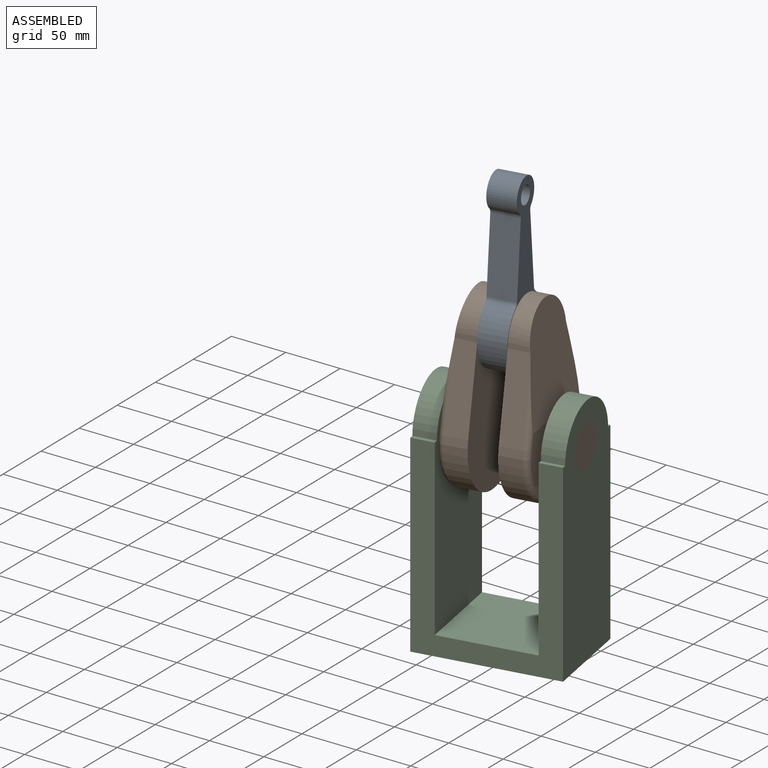
[diagram: assembled view]
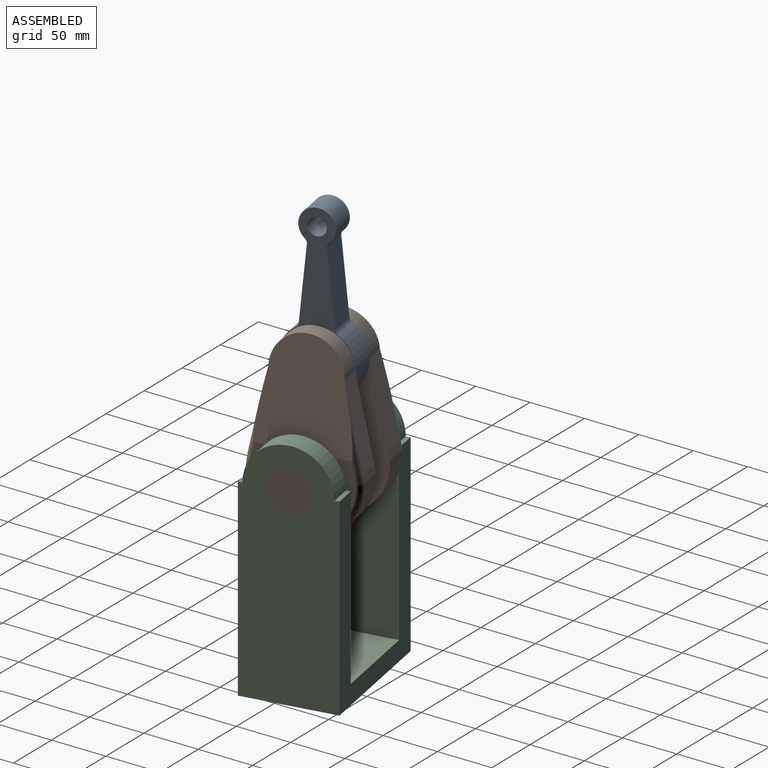
[diagram: assembled view, second angle]
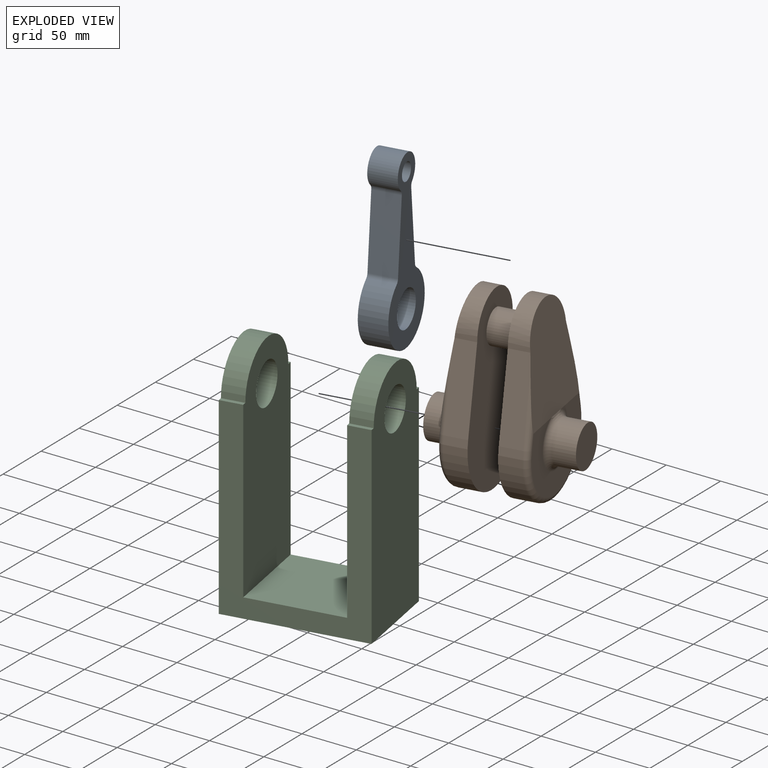
[diagram: exploded view]
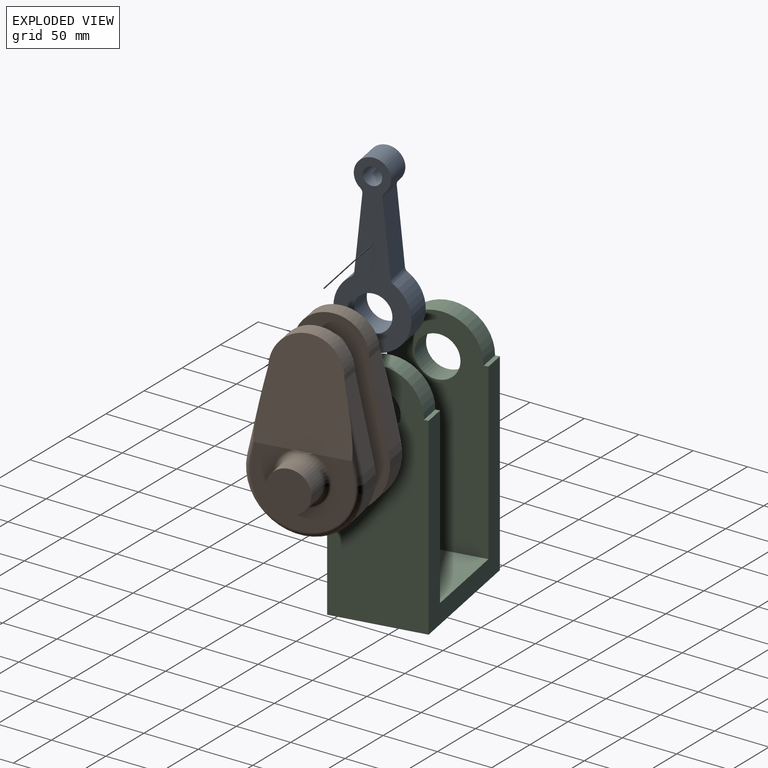
[diagram: exploded view, second angle]
ASSEMBLY  parts=3 mates=2
PART A: 12 faces, bbox 64.9x25.4x162 mm
  f0: cylinder r=32.45mm len=64.9mm, axis (0,1,0), area 4241.7mm2, adj f6,f7,f8,f9
  f1: plane 66.78x25.4mm, normal (0.99,0,0.1), area 1704.9mm2, adj f6,f7,f8,f10
  f2: cylinder r=15.54mm len=31.08mm, axis (0,1,0), area 1919.2mm2, adj f6,f7,f10,f11
  f3: plane 66.78x25.4mm, normal (-0.99,0,0.1), area 1704.9mm2, adj f6,f7,f9,f11
  f4: cylinder r=16.63mm len=33.26mm, axis (0,1,0), area 2653.8mm2, adj f6,f7
  f5: cylinder r=8.11mm len=25.4mm, axis (0,1,0), area 1294.3mm2, adj f6,f7
  f6: plane 162.03x64.9mm, normal (0,-1,0), area 4587.6mm2, adj f0,f1,f2,f3,f4,f5,f8,f9
  f7: plane 162.03x64.9mm, normal (0,1,0), area 4587.6mm2, adj f0,f1,f2,f3,f4,f5,f8,f9
  f8: cylinder r=5.08mm len=25.4mm, axis (0,1,0), area 116.3mm2, adj f0,f1,f6,f7
  f9: cylinder r=5.08mm len=25.4mm, axis (0,1,0), area 116.3mm2, adj f0,f3,f6,f7
  f10: cylinder r=5.08mm len=25.4mm, axis (0,1,0), area 124.1mm2, adj f1,f2,f6,f7
  f11: cylinder r=5.08mm len=25.4mm, axis (0,1,0), area 124.1mm2, adj f2,f3,f6,f7
PART B: 31 faces, bbox 169.8x127.2x106.1 mm
  f0: plane 74.71x20.34mm, normal (0.21,0,-0.98), area 1540mm2, adj f1,f4,f5,f9,f10,f11
  f1: cylinder r=31.65mm len=63.3mm, axis (0,-1,0), area 1660mm2, adj f0,f2,f5,f10
  f2: plane 74.71x20.34mm, normal (0.21,0,0.98), area 1540mm2, adj f1,f4,f5,f9,f10,f13
  f3: plane 87.76x66.43mm, normal (0,-1,0), area 3121.8mm2, adj f9,f11,f12,f13,f14
  f4: cylinder r=48.96mm len=97.92mm, axis (0,-1,0), area 3551mm2, adj f0,f2,f5,f12
  f5: plane 165.58x97.92mm, normal (0,1,0), area 11547.5mm2, adj f0,f1,f2,f4,f6
  f6: cylinder r=15.24mm len=30.48mm, axis (0,-1,0), area 2432.2mm2, adj f5,f21
  f7: cylinder r=19.05mm len=38.1mm, axis (0,1,0), area 2432.2mm2, adj f8,f14,f15
  f8: plane 38.1x38.1mm, normal (0,-1,0), area 1140.1mm2, adj f7
  f9: plane 94.2x82.61mm, normal (0.1,-0.99,0), area 6295.1mm2, adj f0,f2,f3,f10,f11,f13,f15
  f10: bspline ~63.3x33.03mm, area 3.8mm2, adj f0,f1,f2,f9
  f11: cylinder r=5.08mm len=61.55mm, axis (0.98,0,0.21), area 245.8mm2, adj f0,f3,f9,f12
  f12: torus R=43.88mm, axis (0,1,0), area 1341.9mm2, adj f3,f4,f11,f13
  f13: cylinder r=5.08mm len=61.55mm, axis (-0.98,0,0.21), area 245.8mm2, adj f2,f3,f9,f12
  f14: torus R=24.13mm, axis (0,1,0), area 926.3mm2, adj f3,f7,f15
  f15: bspline ~18.83x5.49mm, area 103mm2, adj f7,f9,f14
  f16: plane 74.71x20.34mm, normal (0.21,0,-0.98), area 1540mm2, adj f17,f20,f21,f24,f25,f26
  f17: cylinder r=31.65mm len=63.3mm, axis (0,1,0), area 1660mm2, adj f16,f18,f21,f25
  f18: plane 74.71x20.34mm, normal (0.21,0,0.98), area 1540mm2, adj f17,f20,f21,f24,f25,f28
  f19: plane 87.76x66.43mm, normal (0,1,0), area 3121.8mm2, adj f24,f26,f27,f28,f29
  f20: cylinder r=48.96mm len=97.92mm, axis (0,1,0), area 3551mm2, adj f16,f18,f21,f27
  f21: plane 165.58x97.92mm, normal (0,-1,0), area 11547.5mm2, adj f6,f16,f17,f18,f20
  f22: cylinder r=19.05mm len=38.1mm, axis (0,-1,0), area 2432.2mm2, adj f23,f29,f30
  f23: plane 38.1x38.1mm, normal (0,1,0), area 1140.1mm2, adj f22
  f24: plane 94.2x82.61mm, normal (0.1,0.99,0), area 6295.1mm2, adj f16,f18,f19,f25,f26,f28,f30
  f25: bspline ~63.3x33.03mm, area 3.8mm2, adj f16,f17,f18,f24
  f26: cylinder r=5.08mm len=61.55mm, axis (0.98,0,0.21), area 245.8mm2, adj f16,f19,f24,f27
  f27: torus R=43.88mm, axis (0,-1,0), area 1341.9mm2, adj f19,f20,f26,f28
  f28: cylinder r=5.08mm len=61.55mm, axis (-0.98,0,0.21), area 245.8mm2, adj f18,f19,f24,f27
  f29: torus R=24.13mm, axis (0,-1,0), area 926.3mm2, adj f19,f22,f30
  f30: bspline ~18.83x5.49mm, area 103mm2, adj f22,f24,f29
PART C: 16 faces, bbox 127x84.4x216.1 mm
  f0: plane 198.4x84.39mm, normal (1,0,0), area 14676.4mm2, adj f1,f2,f3,f4,f5,f6,f9
  f1: plane 177.8x127mm, normal (0,1,0), area 8757.7mm2, adj f0,f2,f7,f8,f9,f10,f11,f15
  f2: plane 20.32x3.98mm, normal (0,0,1), area 80.8mm2, adj f0,f1,f3,f8
  f3: cylinder r=38.34mm len=76.68mm, axis (-1,0,0), area 2447.6mm2, adj f0,f2,f4,f8
  f4: plane 20.32x3.73mm, normal (0,0,1), area 75.8mm2, adj f0,f3,f5,f8
  f5: plane 177.8x127mm, normal (0,-1,0), area 8757.7mm2, adj f0,f4,f7,f8,f9,f10,f13,f15
  f6: cylinder r=19.05mm len=38.1mm, axis (-1,0,0), area 2432.2mm2, adj f0,f8
  f7: plane 127x84.39mm, normal (0,0,-1), area 10717.4mm2, adj f1,f5,f8,f15
  f8: plane 216.14x84.39mm, normal (-1,0,0), area 16173.4mm2, adj f1,f2,f3,f4,f5,f6,f7
  f9: plane 86.36x84.39mm, normal (0,0,1), area 7287.8mm2, adj f0,f1,f5,f10
  f10: plane 198.4x84.39mm, normal (-1,0,0), area 14676.4mm2, adj f1,f5,f9,f11,f12,f13,f14
  f11: plane 20.32x3.98mm, normal (0,0,1), area 80.8mm2, adj f1,f10,f12,f15
  f12: cylinder r=38.34mm len=76.68mm, axis (1,0,0), area 2447.6mm2, adj f10,f11,f13,f15
  f13: plane 20.32x3.73mm, normal (0,0,1), area 75.8mm2, adj f5,f10,f12,f15
  f14: cylinder r=19.05mm len=38.1mm, axis (1,0,0), area 2432.2mm2, adj f10,f15
  f15: plane 216.14x84.39mm, normal (1,0,0), area 16173.4mm2, adj f1,f5,f7,f11,f12,f13,f14
PLACE A rot(axis=(0,0,-1),80deg) t=(108.54,10.14,71.8)mm
PLACE B rot(axis=(0.61,-0.51,0.61),125.9deg) t=(58.51,1.32,-13.16)mm
PLACE C rot(axis=(0,0,1),10deg) t=(33.49,-3.09,-13.16)mm
MATE revolute A.f0 <-> B.f1  axis (0.98,0.17,0) through (108.54,10.14,71.8)mm
MATE revolute B.f4 <-> C.f3  axis (-0.98,-0.17,0) through (33.49,-3.09,-13.16)mm
